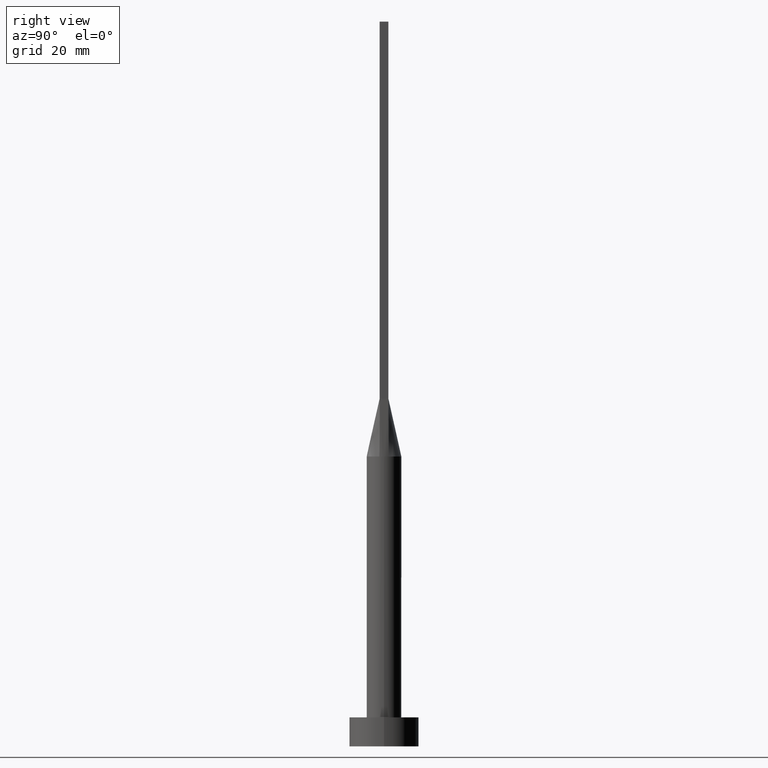
[diagram: clean part render]
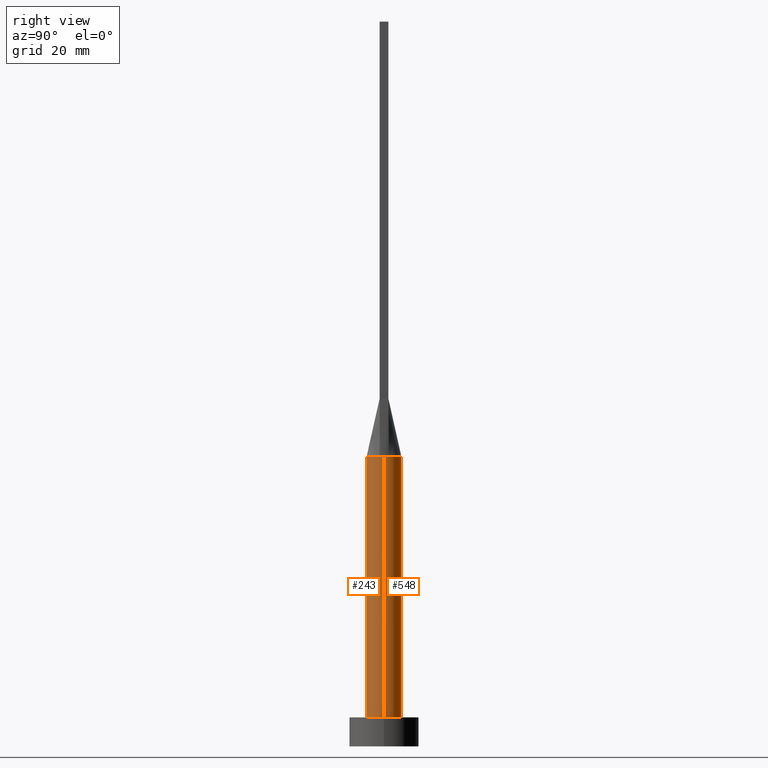
[diagram: same view with one multi-face feature highlighted, each face labeled with its STEP entity id]
A machine part, right view. The highlighted faces form ONE feature: a constant-radius fillet chain: 2 tangent blend faces with common blend radius 3 mm. The faces share edges in the B-rep.
Their STEP definitions:
[1] entity #243 (Cylinder):
#6 = ORIENTED_EDGE ( 'NONE', *, *, #222, .F. ) ;
#12 = CARTESIAN_POINT ( 'NONE',  ( 2.894514141151844910, -0.7894138151126537384, 49.99999999999999289 ) ) ;
#15 = CARTESIAN_POINT ( 'NONE',  ( -3.000000000000000444, 0.000000000000000000, 5.000000000000000000 ) ) ;
#17 = CIRCLE ( 'NONE', #45, 3.000000000000000444 ) ;
#27 = CYLINDRICAL_SURFACE ( 'NONE', #103, 3.000000000000000444 ) ;
#45 = AXIS2_PLACEMENT_3D ( 'NONE', #432, #160, #556 ) ;
#51 = VERTEX_POINT ( 'NONE', #470 ) ;
#61 = DIRECTION ( 'NONE',  ( 0.000000000000000000, 0.000000000000000000, 1.000000000000000000 ) ) ;
#62 = VERTEX_POINT ( 'NONE', #12 ) ;
#77 = CARTESIAN_POINT ( 'NONE',  ( 0.000000000000000000, 0.000000000000000000, 5.000000000000000000 ) ) ;
#78 = EDGE_CURVE ( 'NONE', #502, #189, #339, .T. ) ;
#100 = ORIENTED_EDGE ( 'NONE', *, *, #554, .F. ) ;
#103 = AXIS2_PLACEMENT_3D ( 'NONE', #338, #254, #517 ) ;
#106 = DIRECTION ( 'NONE',  ( 0.000000000000000000, 0.000000000000000000, 1.000000000000000000 ) ) ;
#118 = DIRECTION ( 'NONE',  ( 1.000000000000000000, 0.000000000000000000, 0.000000000000000000 ) ) ;
#128 = CARTESIAN_POINT ( 'NONE',  ( -3.000000000000000444, 0.000000000000000000, 49.99999999999999289 ) ) ;
#132 = FACE_OUTER_BOUND ( 'NONE', #197, .T. ) ;
#136 = EDGE_CURVE ( 'NONE', #62, #367, #17, .T. ) ;
#153 = DIRECTION ( 'NONE',  ( 1.000000000000000000, 0.000000000000000000, 0.000000000000000000 ) ) ;
#160 = DIRECTION ( 'NONE',  ( 0.000000000000000000, 0.000000000000000000, 1.000000000000000000 ) ) ;
#178 = VECTOR ( 'NONE', #282, 1000.000000000000000 ) ;
#189 = VERTEX_POINT ( 'NONE', #15 ) ;
#197 = EDGE_LOOP ( 'NONE', ( #363, #416, #100, #6, #229, #538 ) ) ;
#207 = CIRCLE ( 'NONE', #308, 3.000000000000000444 ) ;
#222 = EDGE_CURVE ( 'NONE', #502, #458, #450, .T. ) ;
#229 = ORIENTED_EDGE ( 'NONE', *, *, #78, .T. ) ;
#243 = ADVANCED_FACE ( 'NONE', ( #132 ), #27, .T. ) ;
#254 = DIRECTION ( 'NONE',  ( -0.000000000000000000, -0.000000000000000000, -1.000000000000000000 ) ) ;
#282 = DIRECTION ( 'NONE',  ( -0.000000000000000000, -0.000000000000000000, -1.000000000000000000 ) ) ;
#286 = CARTESIAN_POINT ( 'NONE',  ( 0.000000000000000000, 0.000000000000000000, 49.99999999999999289 ) ) ;
#308 = AXIS2_PLACEMENT_3D ( 'NONE', #286, #61, #153 ) ;
#313 = AXIS2_PLACEMENT_3D ( 'NONE', #77, #475, #118 ) ;
#325 = VECTOR ( 'NONE', #568, 1000.000000000000000 ) ;
#331 = EDGE_CURVE ( 'NONE', #189, #51, #540, .T. ) ;
#338 = CARTESIAN_POINT ( 'NONE',  ( 0.000000000000000000, 0.000000000000000000, 49.99999999999999289 ) ) ;
#339 = LINE ( 'NONE', #128, #325 ) ;
#359 = CARTESIAN_POINT ( 'NONE',  ( -2.894489875237701959, -0.7894071376467488577, 49.99999999999999289 ) ) ;
#363 = ORIENTED_EDGE ( 'NONE', *, *, #563, .F. ) ;
#367 = VERTEX_POINT ( 'NONE', #561 ) ;
#381 = CARTESIAN_POINT ( 'NONE',  ( 0.000000000000000000, 0.000000000000000000, 49.99999999999999289 ) ) ;
#405 = AXIS2_PLACEMENT_3D ( 'NONE', #381, #106, #424 ) ;
#413 = LINE ( 'NONE', #419, #178 ) ;
#416 = ORIENTED_EDGE ( 'NONE', *, *, #136, .F. ) ;
#419 = CARTESIAN_POINT ( 'NONE',  ( 3.000000000000000444, 3.673940397442059868E-16, 49.99999999999999289 ) ) ;
#424 = DIRECTION ( 'NONE',  ( 1.000000000000000000, 0.000000000000000000, 0.000000000000000000 ) ) ;
#432 = CARTESIAN_POINT ( 'NONE',  ( 0.000000000000000000, 0.000000000000000000, 49.99999999999999289 ) ) ;
#450 = CIRCLE ( 'NONE', #405, 3.000000000000000444 ) ;
#451 = CARTESIAN_POINT ( 'NONE',  ( -3.000000000000000000, -1.912111867153114916E-16, 49.99999999999998579 ) ) ;
#458 = VERTEX_POINT ( 'NONE', #359 ) ;
#470 = CARTESIAN_POINT ( 'NONE',  ( 3.000000000000000444, 3.673940397442059868E-16, 5.000000000000000000 ) ) ;
#475 = DIRECTION ( 'NONE',  ( 0.000000000000000000, 0.000000000000000000, 1.000000000000000000 ) ) ;
#502 = VERTEX_POINT ( 'NONE', #451 ) ;
#517 = DIRECTION ( 'NONE',  ( -1.000000000000000000, 0.000000000000000000, 0.000000000000000000 ) ) ;
#538 = ORIENTED_EDGE ( 'NONE', *, *, #331, .T. ) ;
#540 = CIRCLE ( 'NONE', #313, 3.000000000000000444 ) ;
#554 = EDGE_CURVE ( 'NONE', #458, #62, #207, .T. ) ;
#556 = DIRECTION ( 'NONE',  ( 1.000000000000000000, -3.552713678800500929E-15, 0.000000000000000000 ) ) ;
#561 = CARTESIAN_POINT ( 'NONE',  ( 3.000000000000000888, 4.817174831141492683E-17, 49.99999999999998579 ) ) ;
#563 = EDGE_CURVE ( 'NONE', #367, #51, #413, .T. ) ;
#568 = DIRECTION ( 'NONE',  ( -0.000000000000000000, -0.000000000000000000, -1.000000000000000000 ) ) ;
[2] entity #548 (Cylinder):
#1 = CARTESIAN_POINT ( 'NONE',  ( 0.000000000000000000, 0.000000000000000000, 49.99999999999999289 ) ) ;
#3 = CARTESIAN_POINT ( 'NONE',  ( -0.7628506052746797383, 2.924692134573155133, 50.00000000000001421 ) ) ;
#15 = CARTESIAN_POINT ( 'NONE',  ( -3.000000000000000444, 0.000000000000000000, 5.000000000000000000 ) ) ;
#18 = CARTESIAN_POINT ( 'NONE',  ( -2.733316749964668002, 1.269511353635830453, 50.00000000000000711 ) ) ;
#41 = DIRECTION ( 'NONE',  ( 0.000000000000000000, 0.000000000000000000, 1.000000000000000000 ) ) ;
#51 = VERTEX_POINT ( 'NONE', #470 ) ;
#67 = AXIS2_PLACEMENT_3D ( 'NONE', #1, #139, #98 ) ;
#68 = CARTESIAN_POINT ( 'NONE',  ( -2.830829925251659329, 1.022044525068634302, 50.00000000000000711 ) ) ;
#78 = EDGE_CURVE ( 'NONE', #502, #189, #339, .T. ) ;
#94 = CARTESIAN_POINT ( 'NONE',  ( 2.442412046818595250, 1.765588549521970529, 49.99999999999999289 ) ) ;
#98 = DIRECTION ( 'NONE',  ( 1.000000000000000000, 0.000000000000000000, 0.000000000000000000 ) ) ;
#110 = FACE_OUTER_BOUND ( 'NONE', #276, .T. ) ;
#111 = AXIS2_PLACEMENT_3D ( 'NONE', #441, #41, #221 ) ;
#113 = CARTESIAN_POINT ( 'NONE',  ( -2.894506632021299541, 0.7894116946786271516, 49.99999999999999289 ) ) ;
#117 = EDGE_CURVE ( 'NONE', #457, #373, #244, .T. ) ;
#128 = CARTESIAN_POINT ( 'NONE',  ( -3.000000000000000444, 0.000000000000000000, 49.99999999999999289 ) ) ;
#139 = DIRECTION ( 'NONE',  ( 0.000000000000000000, 0.000000000000000000, 1.000000000000000000 ) ) ;
#144 = ORIENTED_EDGE ( 'NONE', *, *, #117, .F. ) ;
#178 = VECTOR ( 'NONE', #282, 1000.000000000000000 ) ;
#189 = VERTEX_POINT ( 'NONE', #15 ) ;
#191 = CARTESIAN_POINT ( 'NONE',  ( 1.751288851749022379, 2.458468820606022565, 49.99999999999998579 ) ) ;
#204 = DIRECTION ( 'NONE',  ( -1.000000000000000000, 0.000000000000000000, 0.000000000000000000 ) ) ;
#221 = DIRECTION ( 'NONE',  ( 1.000000000000000000, 0.000000000000000000, 0.000000000000000000 ) ) ;
#224 = CARTESIAN_POINT ( 'NONE',  ( -0.3818979204996078569, 3.000000000000000888, 49.99999999999999289 ) ) ;
#226 = CIRCLE ( 'NONE', #430, 3.000000000000000444 ) ;
#230 = CARTESIAN_POINT ( 'NONE',  ( 2.894482401701604424, 0.7894050286368272662, 49.99999999999999289 ) ) ;
#231 = DIRECTION ( 'NONE',  ( -0.000000000000000000, -0.000000000000000000, -1.000000000000000000 ) ) ;
#233 = ORIENTED_EDGE ( 'NONE', *, *, #563, .T. ) ;
#244 = B_SPLINE_CURVE_WITH_KNOTS ( 'NONE', 3,
 ( #536, #542, #495, #94, #317, #191, #270, #506, #444, #224, #3, #539, #274, #380, #468, #18, #68, #113 ),
 .UNSPECIFIED., .F., .F.,
 ( 4, 2, 2, 2, 2, 2, 2, 2, 4 ),
 ( 0.000000000000000000, 0.1250000000000000000, 0.2500000000000000000, 0.3750000000000000000, 0.5000000000000000000, 0.6250000000000000000, 0.7500000000000000000, 0.8750000000000000000, 1.000000000000000000 ),
 .UNSPECIFIED. ) ;
#251 = CIRCLE ( 'NONE', #67, 3.000000000000000444 ) ;
#270 = CARTESIAN_POINT ( 'NONE',  ( 1.447928580458859305, 2.653161878569118670, 50.00000000000000711 ) ) ;
#274 = CARTESIAN_POINT ( 'NONE',  ( -1.751288851749021491, 2.458468820606022565, 49.99999999999997868 ) ) ;
#276 = EDGE_LOOP ( 'NONE', ( #546, #233, #449, #341, #476, #144 ) ) ;
#282 = DIRECTION ( 'NONE',  ( -0.000000000000000000, -0.000000000000000000, -1.000000000000000000 ) ) ;
#303 = EDGE_CURVE ( 'NONE', #51, #189, #226, .T. ) ;
#317 = CARTESIAN_POINT ( 'NONE',  ( 2.248179627679386172, 2.014142483996539834, 49.99999999999998579 ) ) ;
#319 = CYLINDRICAL_SURFACE ( 'NONE', #578, 3.000000000000000444 ) ;
#325 = VECTOR ( 'NONE', #568, 1000.000000000000000 ) ;
#339 = LINE ( 'NONE', #128, #325 ) ;
#341 = ORIENTED_EDGE ( 'NONE', *, *, #78, .F. ) ;
#361 = CIRCLE ( 'NONE', #111, 3.000000000000000444 ) ;
#367 = VERTEX_POINT ( 'NONE', #561 ) ;
#373 = VERTEX_POINT ( 'NONE', #520 ) ;
#380 = CARTESIAN_POINT ( 'NONE',  ( -2.248179627679385728, 2.014142483996540278, 49.99999999999998579 ) ) ;
#413 = LINE ( 'NONE', #419, #178 ) ;
#419 = CARTESIAN_POINT ( 'NONE',  ( 3.000000000000000444, 3.673940397442059868E-16, 49.99999999999999289 ) ) ;
#430 = AXIS2_PLACEMENT_3D ( 'NONE', #478, #558, #525 ) ;
#441 = CARTESIAN_POINT ( 'NONE',  ( 0.000000000000000000, 0.000000000000000000, 49.99999999999999289 ) ) ;
#444 = CARTESIAN_POINT ( 'NONE',  ( 0.3818979204996085230, 3.000000000000001332, 50.00000000000000000 ) ) ;
#449 = ORIENTED_EDGE ( 'NONE', *, *, #303, .T. ) ;
#451 = CARTESIAN_POINT ( 'NONE',  ( -3.000000000000000000, -1.912111867153114916E-16, 49.99999999999998579 ) ) ;
#455 = EDGE_CURVE ( 'NONE', #367, #457, #251, .T. ) ;
#457 = VERTEX_POINT ( 'NONE', #230 ) ;
#468 = CARTESIAN_POINT ( 'NONE',  ( -2.442412046818596139, 1.765588549521969641, 50.00000000000001421 ) ) ;
#470 = CARTESIAN_POINT ( 'NONE',  ( 3.000000000000000444, 3.673940397442059868E-16, 5.000000000000000000 ) ) ;
#476 = ORIENTED_EDGE ( 'NONE', *, *, #515, .F. ) ;
#478 = CARTESIAN_POINT ( 'NONE',  ( 0.000000000000000000, 0.000000000000000000, 5.000000000000000000 ) ) ;
#495 = CARTESIAN_POINT ( 'NONE',  ( 2.733316749964668446, 1.269511353635831341, 50.00000000000001421 ) ) ;
#502 = VERTEX_POINT ( 'NONE', #451 ) ;
#506 = CARTESIAN_POINT ( 'NONE',  ( 0.7628506052746800714, 2.924692134573154689, 50.00000000000000711 ) ) ;
#515 = EDGE_CURVE ( 'NONE', #373, #502, #361, .T. ) ;
#520 = CARTESIAN_POINT ( 'NONE',  ( -2.894506632021299541, 0.7894116946786271516, 49.99999999999999289 ) ) ;
#525 = DIRECTION ( 'NONE',  ( 1.000000000000000000, 0.000000000000000000, 0.000000000000000000 ) ) ;
#536 = CARTESIAN_POINT ( 'NONE',  ( 2.894482401701604424, 0.7894050286368272662, 49.99999999999999289 ) ) ;
#539 = CARTESIAN_POINT ( 'NONE',  ( -1.447928580458858416, 2.653161878569119558, 50.00000000000000711 ) ) ;
#542 = CARTESIAN_POINT ( 'NONE',  ( 2.830829925251657997, 1.022044525068634302, 50.00000000000000711 ) ) ;
#545 = CARTESIAN_POINT ( 'NONE',  ( 0.000000000000000000, 0.000000000000000000, 49.99999999999999289 ) ) ;
#546 = ORIENTED_EDGE ( 'NONE', *, *, #455, .F. ) ;
#548 = ADVANCED_FACE ( 'NONE', ( #110 ), #319, .T. ) ;
#558 = DIRECTION ( 'NONE',  ( 0.000000000000000000, 0.000000000000000000, 1.000000000000000000 ) ) ;
#561 = CARTESIAN_POINT ( 'NONE',  ( 3.000000000000000888, 4.817174831141492683E-17, 49.99999999999998579 ) ) ;
#563 = EDGE_CURVE ( 'NONE', #367, #51, #413, .T. ) ;
#568 = DIRECTION ( 'NONE',  ( -0.000000000000000000, -0.000000000000000000, -1.000000000000000000 ) ) ;
#578 = AXIS2_PLACEMENT_3D ( 'NONE', #545, #231, #204 ) ;